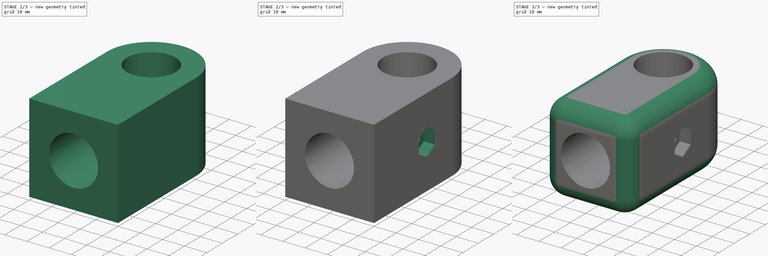
[diagram: build sequence overview — one tinted view per stage of 3, left to right]
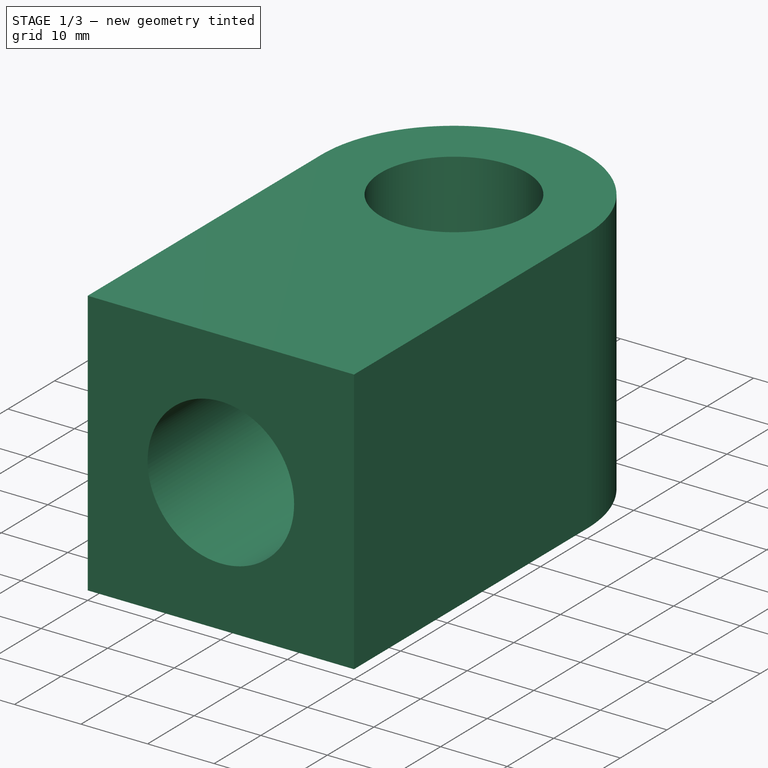
[diagram: stage 1 of 3 — iso view after this stage's code; geometry added in this stage tinted green]
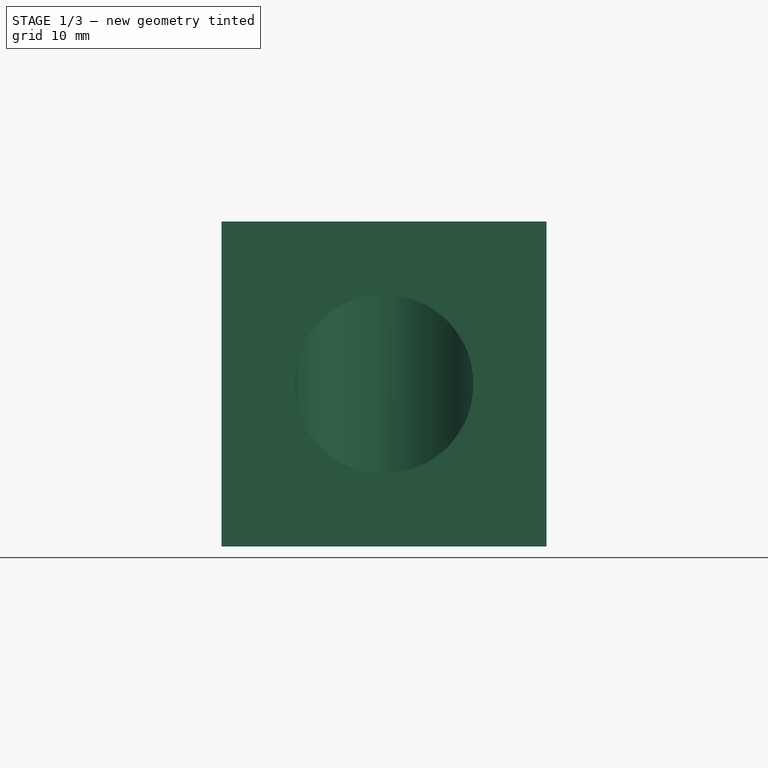
[diagram: stage 1 of 3 — front view after this stage's code; geometry added in this stage tinted green]
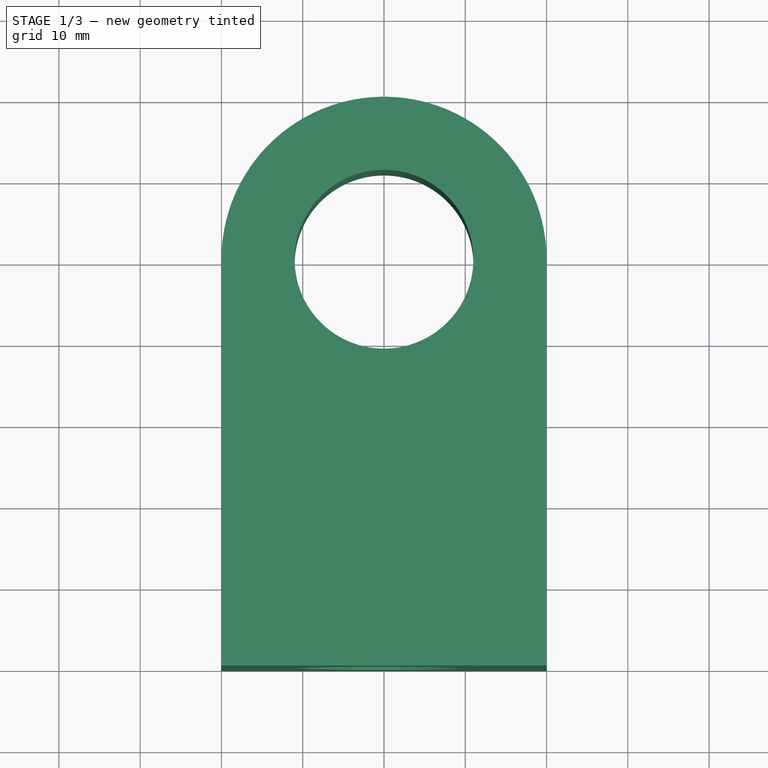
[diagram: stage 1 of 3 — top view after this stage's code; geometry added in this stage tinted green]
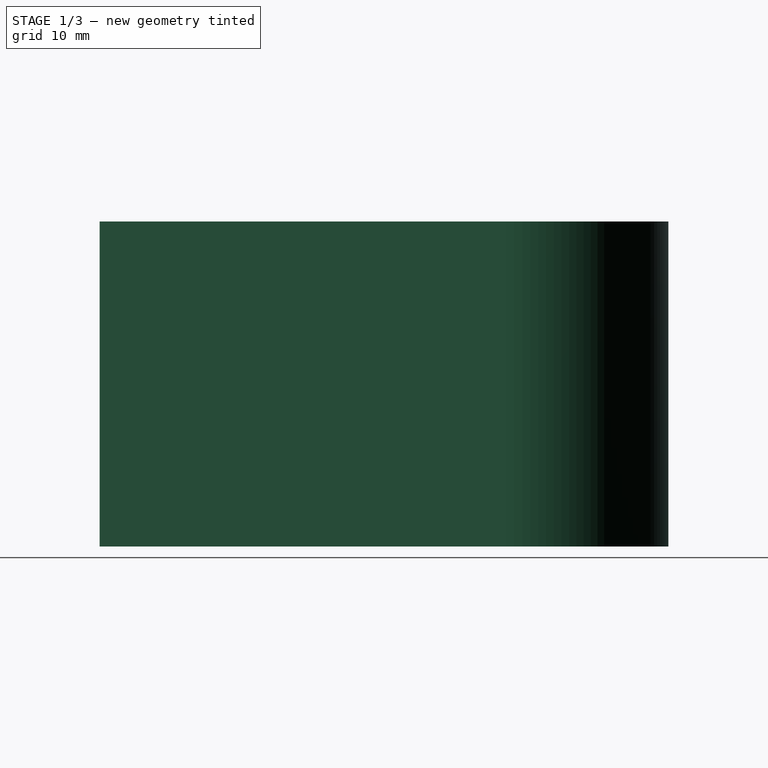
[diagram: stage 1 of 3 — right view after this stage's code; geometry added in this stage tinted green]
FCSTD DOCUMENT  (FreeCAD 0.15R4671 (Git))
Label: T joint v2b
License: All rights reserved
LicenseURL: http://en.wikipedia.org/wiki/All_rights_reserved
objects: Sketcher::SketchObject×6, PartDesign::Pocket×4, PartDesign::Pad×1, PartDesign::Chamfer×1, PartDesign::Fillet×1
note: 18 computed .brp shape members not serialized (recipe doc carries the construction recipe); baked Part::Feature solids carry a one-line shape summary decoded from their .brp

FEATURE [Sketcher::SketchObject] Sketch
  sketch-geometry (5):
    g0: ArcOfCircle CenterX=0 CenterY=0 CenterZ=0 NormalX=0 NormalY=0 NormalZ=1 Radius=20 StartAngle=2.0528e-08 EndAngle=3.1416
    g1: LineSegment StartX=-20 StartY=-4.71217e-05 StartZ=0 EndX=-20 EndY=-50 EndZ=0
    g2: LineSegment StartX=-20 StartY=-50 StartZ=0 EndX=20 EndY=-50 EndZ=0
    g3: LineSegment StartX=20 StartY=-50 StartZ=0 EndX=20 EndY=4.10566e-07 EndZ=0
    g4: Circle CenterX=0 CenterY=0 CenterZ=0 NormalX=0 NormalY=0 NormalZ=1 Radius=11
  constraints (14):
    c: Vertical(g1)
    c: Coincident(g3,g0)
    c: Tangent(g3,g0)
    c: Tangent(g1,g0)
    c: Coincident(g1,g2)
    c: Perpendicular(g1,g2)
    c: Coincident(g2,g3)
    c: Perpendicular(g2,g3)
    c: Coincident(g0,g-1)
    c: Coincident(g1,g0)
    c: Coincident(g-1,g4)
    c: Radius(g4) = 11
    c: Radius(g0) = 20
    c: Distance(g1) = 50
FEATURE [PartDesign::Pad] Pad  label="base 22mm hole"
  Length = 40
  Length2 = 100
  Midplane = true
  Sketch = -> Sketch
  Type = 0
FEATURE [Sketcher::SketchObject] Sketch001
  Placement = pos=(0,-50,0) rot=(1,0,0;1.5708rad)
  Support = -> Pad [Face3]
  sketch-geometry (1):
    g0: Circle CenterX=0 CenterY=0 CenterZ=0 NormalX=0 NormalY=0 NormalZ=1 Radius=11
  constraints (2):
    c: Coincident(g0,g-1)
    c: Radius(g0) = 11
FEATURE [PartDesign::Pocket] Pocket  label="side 22mm hole"
  Length = 50
  Sketch = -> Sketch001
  Type = 0
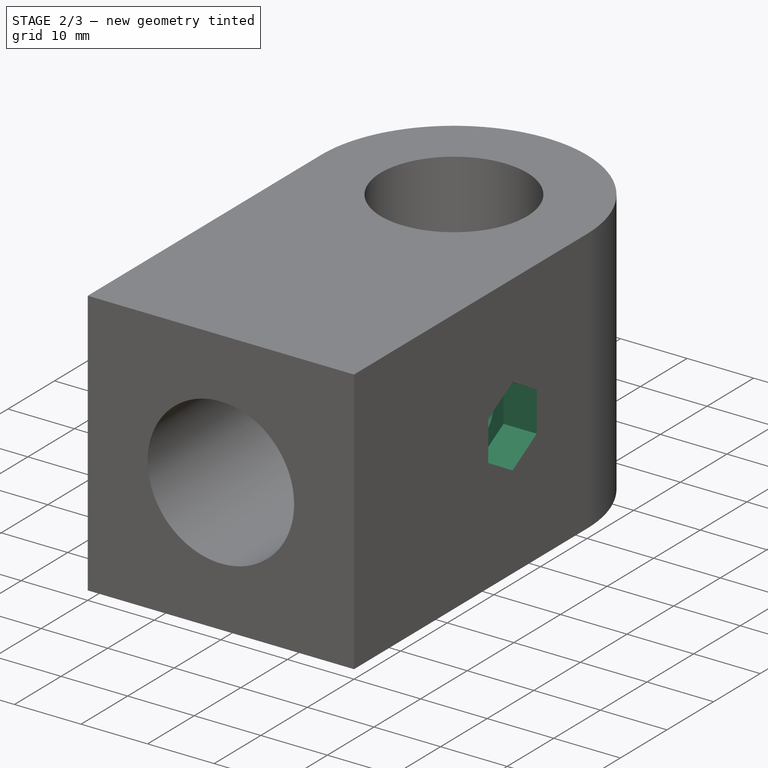
[diagram: stage 2 of 3 — iso view after this stage's code; geometry added in this stage tinted green]
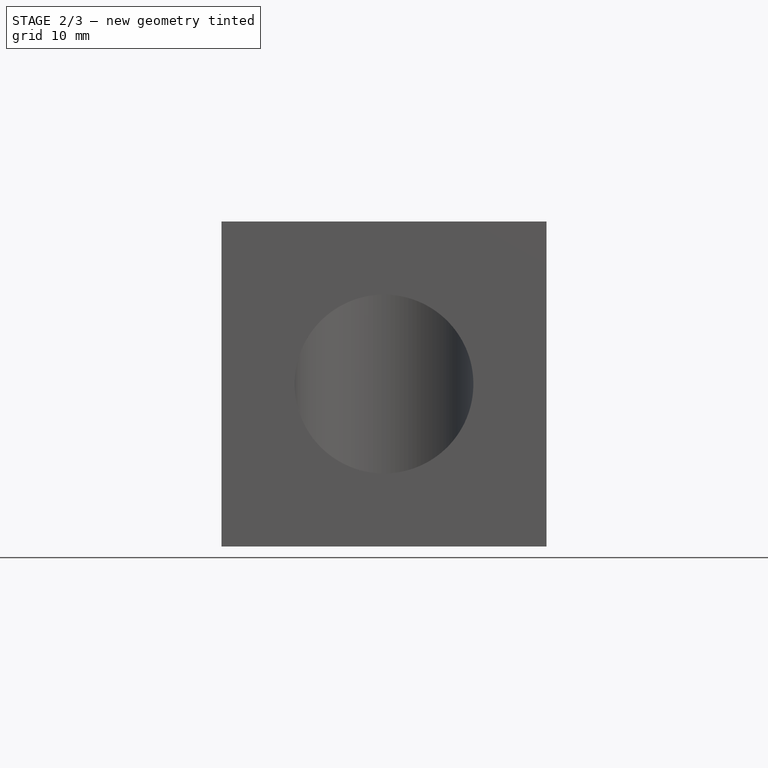
[diagram: stage 2 of 3 — front view after this stage's code; geometry added in this stage tinted green]
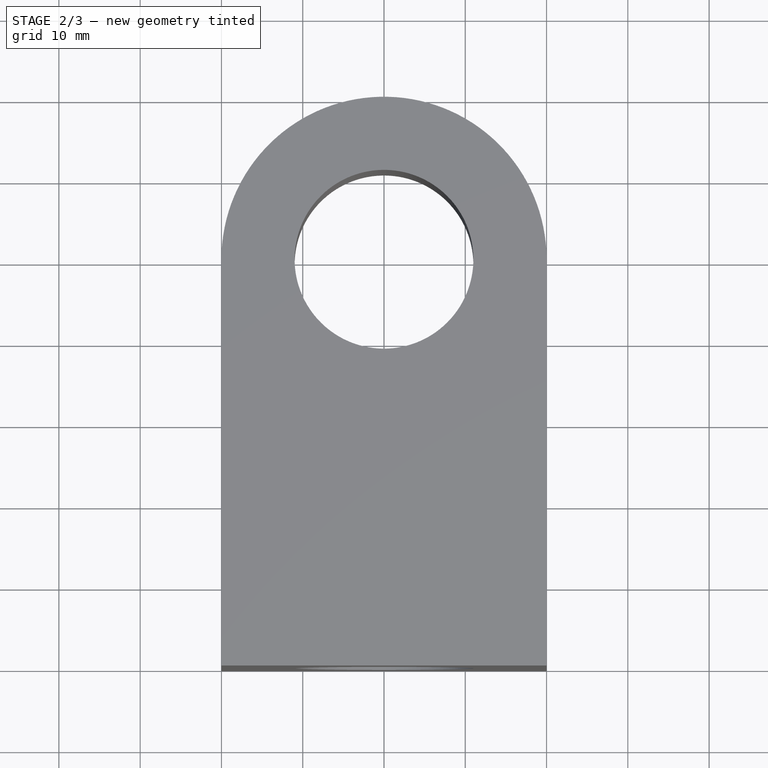
[diagram: stage 2 of 3 — top view after this stage's code; geometry added in this stage tinted green]
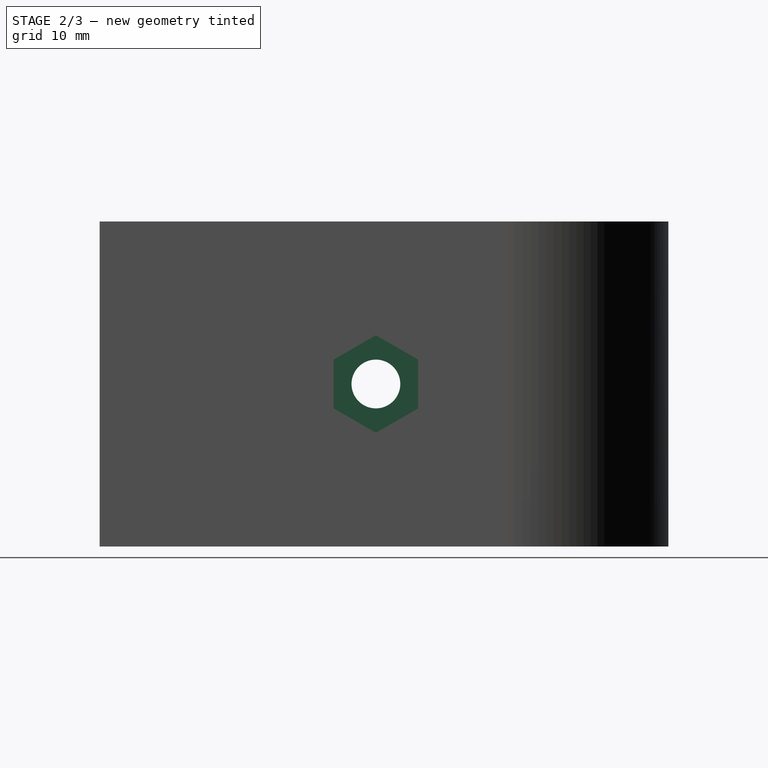
[diagram: stage 2 of 3 — right view after this stage's code; geometry added in this stage tinted green]
FEATURE [Sketcher::SketchObject] Sketch002
  ExternalGeometry = -> [Pocket]
  Placement = pos=(-20,0,0) rot=(0.57735,-0.57735,-0.57735;2.0944rad)
  Support = -> Pocket [Face3]
  sketch-geometry (2):
    g0: Circle CenterX=16 CenterY=0 CenterZ=0 NormalX=0 NormalY=0 NormalZ=1 Radius=7
    g1: GeomPoint [constr] X=50 Y=11.3335 Z=0
  constraints (4):
    c: PointOnObject(g0,g-1)
    c: PointOnObject(g1,g-3)
    c: DistanceX(g1,g0) = -34
    c: Radius(g0) = 7
FEATURE [Sketcher::SketchObject] Sketch003
  Placement = pos=(20,0,0) rot=(0.57735,0.57735,0.57735;2.0944rad)
  sketch-geometry (2):
    g0: Circle CenterX=-16 CenterY=0 CenterZ=0 NormalX=0 NormalY=0 NormalZ=1 Radius=7
    g1: GeomPoint [constr] X=-50 Y=0 Z=0
  constraints (4):
    c: PointOnObject(g0,g-1)
    c: DistanceX(g1,g0) = 34
    c: Radius(g0) = 7
    c: PointOnObject(g1,g-1)
FEATURE [PartDesign::Pocket] Pocket003
  Length = 5
  Sketch = -> Sketch002
  Type = 0
FEATURE [Sketcher::SketchObject] Sketch005
  ExternalGeometry = -> [Pocket003]
  Placement = pos=(20,0,0) rot=(0.57735,0.57735,0.57735;2.0944rad)
  Support = -> Pocket003 [Face2]
  sketch-geometry (9):
    g0: LineSegment StartX=-10.8 StartY=-3.00222 StartZ=0 EndX=-10.8 EndY=3.00222 EndZ=0
    g1: LineSegment StartX=-10.8 StartY=3.00222 StartZ=0 EndX=-16 EndY=6.00444 EndZ=0
    g2: LineSegment StartX=-16 StartY=6.00444 StartZ=0 EndX=-21.2 EndY=3.00222 EndZ=0
    g3: LineSegment StartX=-21.2 StartY=3.00222 StartZ=0 EndX=-21.2 EndY=-3.00222 EndZ=0
    g4: LineSegment StartX=-21.2 StartY=-3.00222 StartZ=0 EndX=-16 EndY=-6.00444 EndZ=0
    g5: LineSegment StartX=-16 StartY=-6.00444 StartZ=0 EndX=-10.8 EndY=-3.00222 EndZ=0
    g6: Circle [constr] CenterX=-16 CenterY=0 CenterZ=0 NormalX=0 NormalY=0 NormalZ=1 Radius=6.00444
    g7: GeomPoint [constr] X=-16 Y=0 Z=0
    g8: GeomPoint [constr] X=-50 Y=0 Z=0
  constraints (21):
    c: Coincident(g0,g1)
    c: Coincident(g1,g2)
    c: Coincident(g2,g3)
    c: Coincident(g3,g4)
    c: Coincident(g4,g5)
    c: Coincident(g5,g0)
    c: Equal(g0, g1-g5) x5
    c: PointOnObject(g0,g6)
    c: PointOnObject(g1,g6)
    c: PointOnObject(g2,g6)
    c: PointOnObject(g3,g6)
    c: PointOnObject(g4,g6)
    c: PointOnObject(g5,g6)
    c: PointOnObject(g3,g-1)
    c: Distance(g3,g0) = 10.4
    c: PointOnObject(g6,g-1)
    c: Coincident(g7,g6)
    c: Vertical(g3)
    c: PointOnObject(g8,g-3)
    c: DistanceX(g8,g6) = 34
    c: PointOnObject(g8,g-1)
FEATURE [PartDesign::Pocket] Pocket004
  Length = 5
  Sketch = -> Sketch005
  Type = 0
FEATURE [Sketcher::SketchObject] Sketch004
  ExternalGeometry = -> [Pocket004]
  Placement = pos=(15,0,0) rot=(0.57735,0.57735,0.57735;2.0944rad)
  Support = -> Pocket004 [Face16]
  sketch-geometry (2):
    g0: Circle CenterX=-16 CenterY=0 CenterZ=0 NormalX=0 NormalY=0 NormalZ=1 Radius=3
    g1: GeomPoint [constr] X=-50 Y=0 Z=0
  constraints (5):
    c: PointOnObject(g0,g-1)
    c: PointOnObject(g1,g-1)
    c: Distance(g1,g0) = 34
    c: Radius(g0) = 3
    c: PointOnObject(g1,g-3)
FEATURE [PartDesign::Pocket] Pocket005
  Length = 5
  Sketch = -> Sketch004
  Type = 1
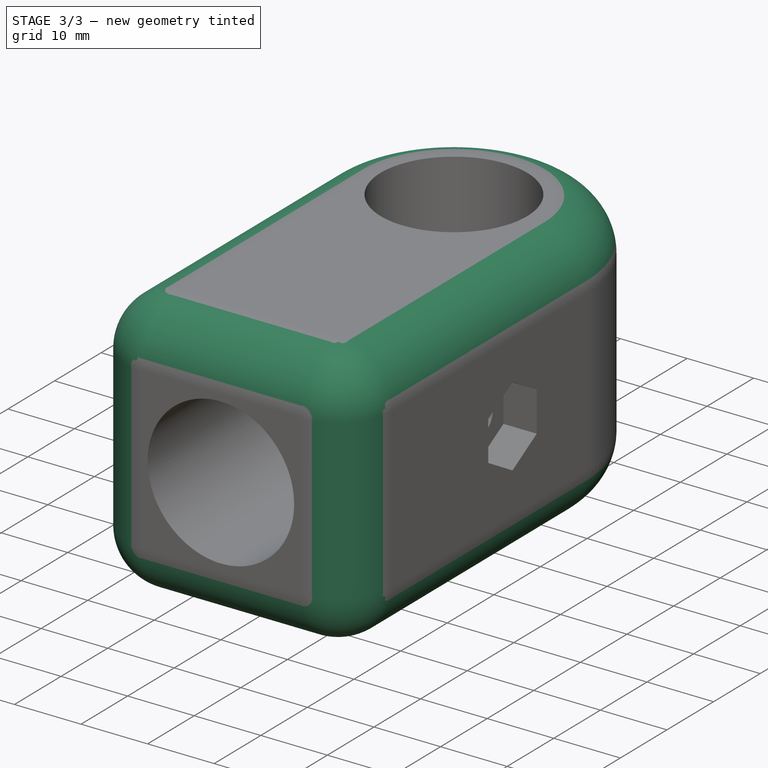
[diagram: stage 3 of 3 — iso view after this stage's code; geometry added in this stage tinted green]
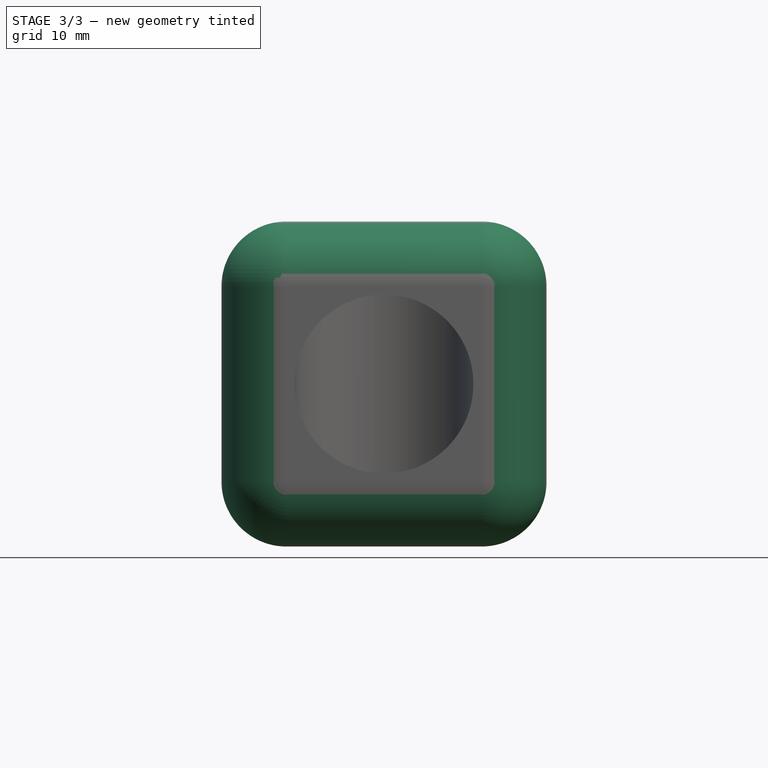
[diagram: stage 3 of 3 — front view after this stage's code; geometry added in this stage tinted green]
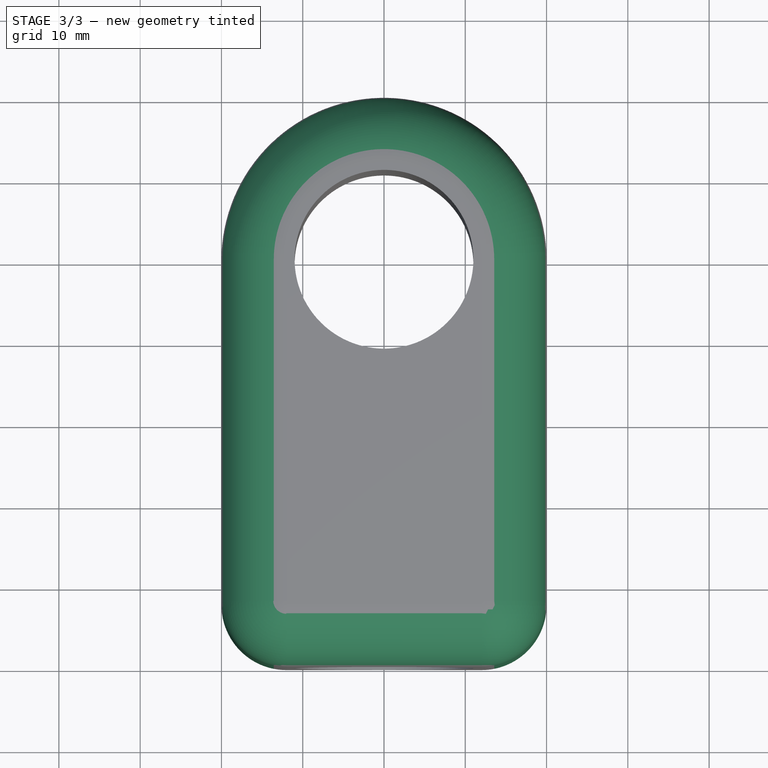
[diagram: stage 3 of 3 — top view after this stage's code; geometry added in this stage tinted green]
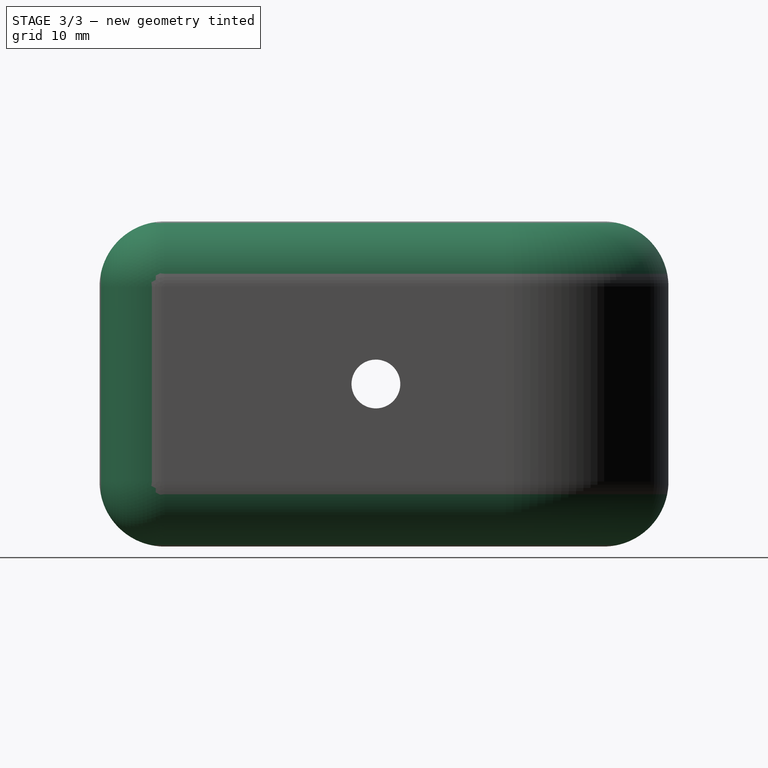
[diagram: stage 3 of 3 — right view after this stage's code; geometry added in this stage tinted green]
FEATURE [PartDesign::Chamfer] Chamfer
  Base = -> Pocket005 [Edge17]
  Size = 4.5
FEATURE [PartDesign::Fillet] Fillet
  Base = -> Chamfer [Edge3,Edge5,Edge11,Edge4,Edge14,Edge17]
  Radius = 8
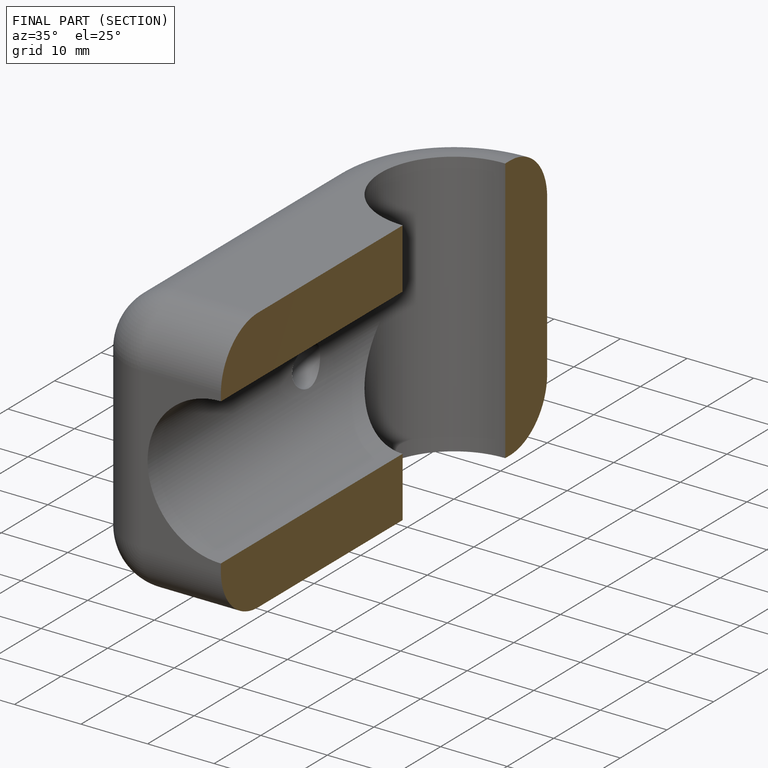
[diagram: finished part — half-section view (interior)]
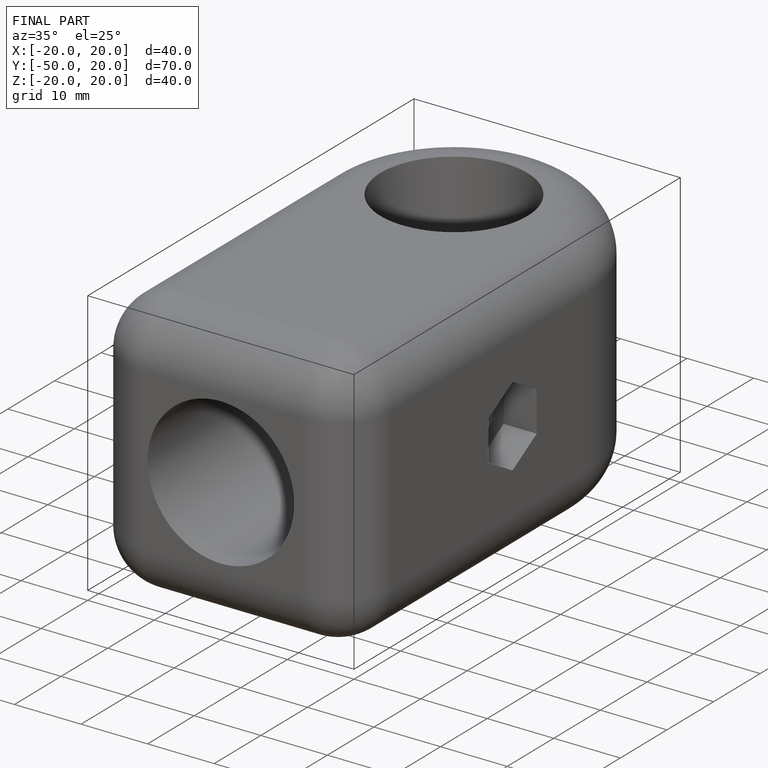
[diagram: finished part — iso view with bounding-box wireframe]
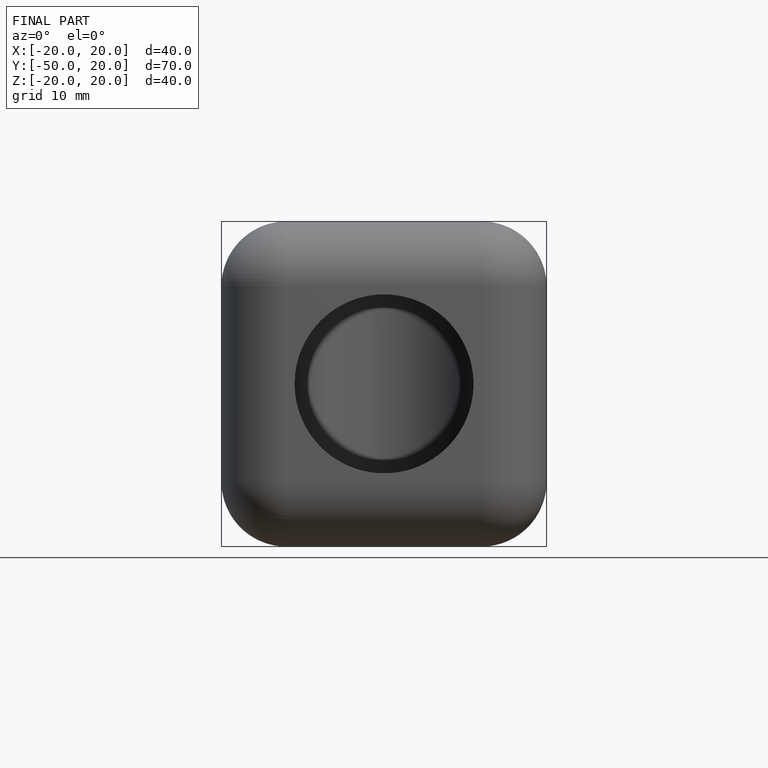
[diagram: finished part — front view with bounding-box wireframe]
